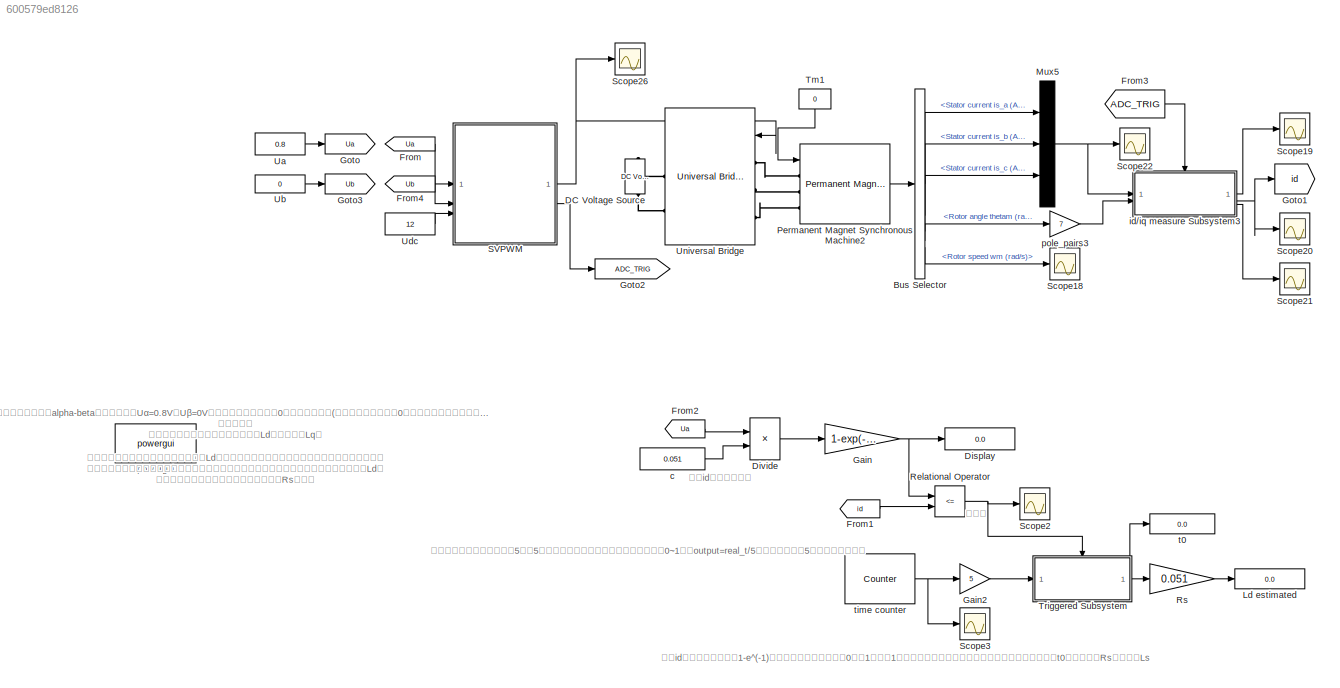
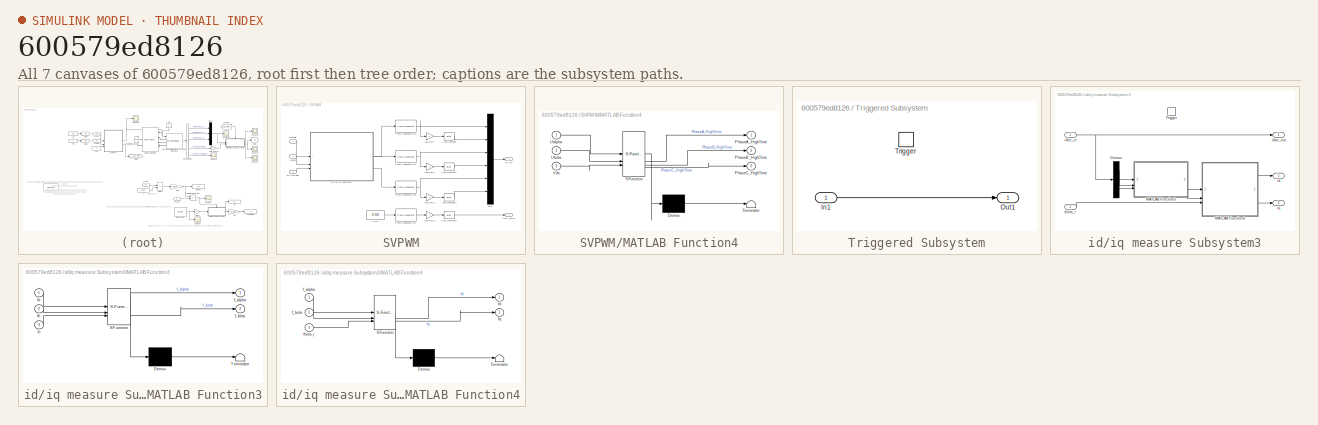
[diagram: thumbnail index - all 7 canvases of the model, root first then tree order]
MODEL slx_600579ed8126
KIND model
CONFIG AbsTol = auto
CONFIG EnableMultiTasking = off
CONFIG FixedStep = 1E-6
CONFIG MaxStep = auto
CONFIG MinStep = auto
CONFIG RelTol = 1e-3
CONFIG SampleTimeConstraint = Unconstrained
CONFIG SolverName = FixedStepAuto
CONFIG StartTime = 0.0
CONFIG StopTime = 0.5
WORKSPACE source: mxarray member
WORKSPACE PWM_Frequency: Simulink.Parameter (value not decoded)
WORKSPACE TimerPeriod = 0.1
BLOCK [Constant]  c
  Value = 0.051
BLOCK [BusSelector] Bus Selector
  OutputSignals = Stator current is_a (A),Stator current is_b (A),Stator current is_c (A),Rotor angle thetam (rad),Rotor speed wm (rad/s)
BLOCK [Reference] DC Voltage Source  REF=spsDCVoltageSourceLib/DC Voltage Source
  LibrarySourceBlock = sps_lib/Sources/DC Voltage Source
  SourceBlock = spsDCVoltageSourceLib/DC Voltage Source
  SourceType = DC Voltage Source
BLOCK [Display] Display
  Decimation = 1
BLOCK [Product] Divide
  Inputs = */
BLOCK [From] From
  GotoTag = Ua
BLOCK [From] From1
  GotoTag = id
BLOCK [From] From2
  GotoTag = Ua
BLOCK [From] From3
  GotoTag = ADC_TRIG
BLOCK [From] From4
  GotoTag = Ub
BLOCK [Gain] Gain
  Gain = 1-exp(-1)
BLOCK [Gain] Gain2
  Gain = 5
BLOCK [Goto] Goto
  GotoTag = Ua
BLOCK [Goto] Goto1
  GotoTag = id
BLOCK [Goto] Goto2
  GotoTag = ADC_TRIG
BLOCK [Goto] Goto3
  GotoTag = Ub
BLOCK [Display] Ld estimated
  Decimation = 1
BLOCK [Mux] Mux5
  DisplayOption = bar
  Inputs = 3
BLOCK [Reference] Permanent Magnet Synchronous Machine2  REF=spsPermanentMagnetSynchronousMachineLib/Permanent Magnet
Synchronous Machine
  LibrarySourceBlock = sps_lib/Electrical Machines/Permanent Magnet\nSynchronous Machine
  SourceBlock = spsPermanentMagnetSynchronousMachineLib/Permanent Magnet\nSynchronous Machine
  SourceType = Permanent Magnet Synchronous Machine
BLOCK [RelationalOperator] Relational Operator
  InputSameDT = off
  Operator = <=
  OutDataTypeStr = boolean
  RndMeth = Simplest
BLOCK [Gain] Rs
  Gain = 0.051
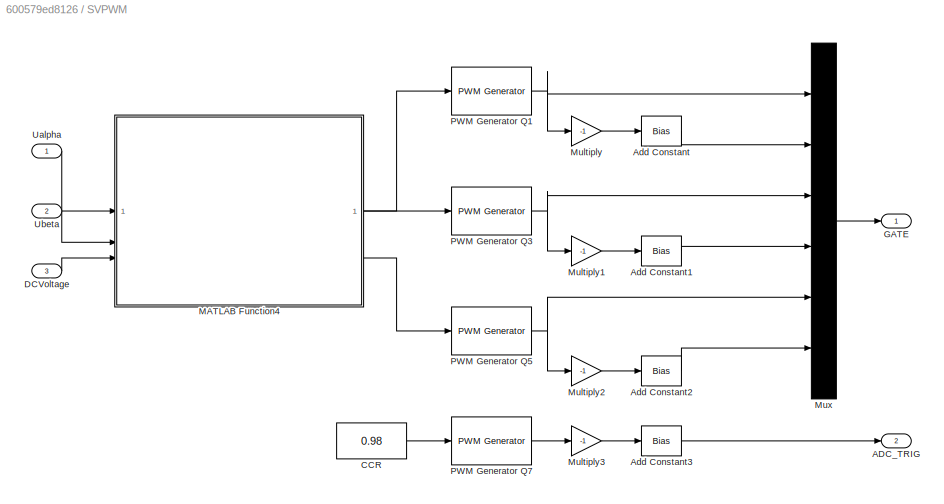
BLOCK [SubSystem] SVPWM
BLOCK [Outport] SVPWM/ADC_TRIG
  Port = 2
BLOCK [Bias] SVPWM/Add Constant
  Bias = 1
  SaturateOnIntegerOverflow = off
BLOCK [Bias] SVPWM/Add Constant1
  Bias = 1
  SaturateOnIntegerOverflow = off
BLOCK [Bias] SVPWM/Add Constant2
  Bias = 1
  SaturateOnIntegerOverflow = off
BLOCK [Bias] SVPWM/Add Constant3
  Bias = 1
  SaturateOnIntegerOverflow = off
BLOCK [Constant] SVPWM/CCR
  Value = 0.98
BLOCK [Inport] SVPWM/DCVoltage
  IconDisplay = Signal name
  Port = 3
BLOCK [Outport] SVPWM/GATE
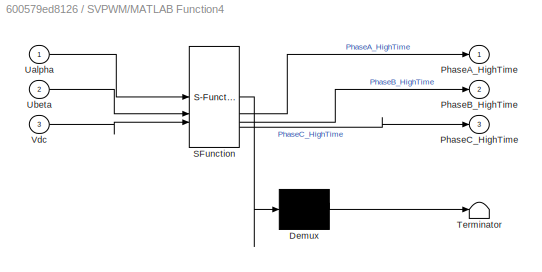
BLOCK [SubSystem] SVPWM/MATLAB Function4
  ErrorFcn = Stateflow.Translate.translate
  PermitHierarchicalResolution = ExplicitOnly
  SFBlockType = MATLAB Function
  TreatAsAtomicUnit = on
BLOCK [Demux] SVPWM/MATLAB Function4/ Demux 
  Outputs = 1
BLOCK [S-Function] SVPWM/MATLAB Function4/ SFunction 
  EnableBusSupport = on
  FunctionName = sf_sfun
  PortCounts = [3 4]
  SFcnIsStateOwnerBlock = off
  SFunctionDeploymentMode = off
  Tag = Stateflow S-Function 17
BLOCK [Terminator] SVPWM/MATLAB Function4/ Terminator 
BLOCK [Outport] SVPWM/MATLAB Function4/PhaseA_HighTime
BLOCK [Outport] SVPWM/MATLAB Function4/PhaseB_HighTime
  Port = 2
BLOCK [Outport] SVPWM/MATLAB Function4/PhaseC_HighTime
  Port = 3
BLOCK [Inport] SVPWM/MATLAB Function4/Ualpha
BLOCK [Inport] SVPWM/MATLAB Function4/Ubeta
  Port = 2
BLOCK [Inport] SVPWM/MATLAB Function4/Vdc
  Port = 3
BLOCK [Gain] SVPWM/Multiply
  Gain = -1
BLOCK [Gain] SVPWM/Multiply1
  Gain = -1
BLOCK [Gain] SVPWM/Multiply2
  Gain = -1
BLOCK [Gain] SVPWM/Multiply3
  Gain = -1
BLOCK [Mux] SVPWM/Mux
  DisplayOption = bar
  Inputs = 6
BLOCK [Reference] SVPWM/PWM Generator Q1  REF=eePwmGenerator/PWM Generator
  LibrarySourceBlock = ee_sl_lib/Pulse Width\nModulation/PWM Generator
  SourceBlock = eePwmGenerator/PWM Generator
  SourceType = PWM Generator
BLOCK [Reference] SVPWM/PWM Generator Q3  REF=eePwmGenerator/PWM Generator
  LibrarySourceBlock = ee_sl_lib/Pulse Width\nModulation/PWM Generator
  SourceBlock = eePwmGenerator/PWM Generator
  SourceType = PWM Generator
BLOCK [Reference] SVPWM/PWM Generator Q5  REF=eePwmGenerator/PWM Generator
  LibrarySourceBlock = ee_sl_lib/Pulse Width\nModulation/PWM Generator
  SourceBlock = eePwmGenerator/PWM Generator
  SourceType = PWM Generator
BLOCK [Reference] SVPWM/PWM Generator Q7  REF=eePwmGenerator/PWM Generator
  LibrarySourceBlock = ee_sl_lib/Pulse Width\nModulation/PWM Generator
  SourceBlock = eePwmGenerator/PWM Generator
  SourceType = PWM Generator
BLOCK [Inport] SVPWM/Ualpha
BLOCK [Inport] SVPWM/Ubeta
  Port = 2
BLOCK [Scope] Scope18
  Floating = off
  NumInputPorts = 1
  ScopeSpecificationString = Simulink.scopes.TimeScopeBlockCfg('CurrentConfiguration', extmgr.ConfigurationSet(extmgr.Configuration('Core','General UI',true),extmgr.Configuration('Core','Source UI',true),extmgr.Configuration('Sources','WiredSimulink',true,'DataLoggingVariableName','ScopeData5'),extmgr.Configuration('Visuals','Time Domain',true,'SerializedDisplays',{struct('MinYLimReal','-24.29362','MaxYLimReal','24.68517','YL...<+1590ch>
BLOCK [Scope] Scope19
  Floating = off
  NumInputPorts = 1
  ScopeSpecificationString = Simulink.scopes.TimeScopeBlockCfg('CurrentConfiguration', extmgr.ConfigurationSet(extmgr.Configuration('Core','General UI',true),extmgr.Configuration('Core','Source UI',true),extmgr.Configuration('Sources','WiredSimulink',true,'DataLoggingVariableName','ScopeData6'),extmgr.Configuration('Visuals','Time Domain',true,'SerializedDisplays',{struct('MinYLimReal','-10.66061','MaxYLimReal','18.41378','YL...<+1627ch>
BLOCK [Scope] Scope2
  Floating = off
  NumInputPorts = 1
  ScopeSpecificationString = Simulink.scopes.TimeScopeBlockCfg('CurrentConfiguration', extmgr.ConfigurationSet(extmgr.Configuration('Core','General UI',true),extmgr.Configuration('Core','Source UI',true),extmgr.Configuration('Sources','WiredSimulink',true,'DataLoggingVariableName','ScopeData1'),extmgr.Configuration('Visuals','Time Domain',true,'SerializedDisplays',{struct('MinYLimReal','-0.125','MaxYLimReal','1.125','YLabelRe...<+1567ch>
BLOCK [Scope] Scope20
  Floating = off
  NumInputPorts = 1
  ScopeSpecificationString = Simulink.scopes.TimeScopeBlockCfg('CurrentConfiguration', extmgr.ConfigurationSet(extmgr.Configuration('Core','General UI',true),extmgr.Configuration('Core','Source UI',true),extmgr.Configuration('Sources','WiredSimulink',true,'DataLoggingVariableName','ScopeData7'),extmgr.Configuration('Visuals','Time Domain',true,'SerializedDisplays',{struct('MinYLimReal','-1.37271','MaxYLimReal','12.35443','YLa...<+1562ch>
BLOCK [Scope] Scope21
  Floating = off
  NumInputPorts = 1
  ScopeSpecificationString = Simulink.scopes.TimeScopeBlockCfg('CurrentConfiguration', extmgr.ConfigurationSet(extmgr.Configuration('Core','General UI',true),extmgr.Configuration('Core','Source UI',true),extmgr.Configuration('Sources','WiredSimulink',true,'DataLoggingVariableName','ScopeData8'),extmgr.Configuration('Visuals','Time Domain',true,'SerializedDisplays',{struct('MinYLimReal','-1.16492','MaxYLimReal','1.06283','YLab...<+1558ch>
BLOCK [Scope] Scope22
  Floating = off
  NumInputPorts = 1
  ScopeSpecificationString = Simulink.scopes.TimeScopeBlockCfg('CurrentConfiguration', extmgr.ConfigurationSet(extmgr.Configuration('Core','General UI',true),extmgr.Configuration('Core','Source UI',true),extmgr.Configuration('Sources','WiredSimulink',true,'DataLoggingVariableName','ScopeData9'),extmgr.Configuration('Visuals','Time Domain',true,'SerializedDisplays',{struct('MinYLimReal','-2.69787','MaxYLimReal','4.65995','YLab...<+1678ch>
BLOCK [Scope] Scope26
  Floating = off
  NumInputPorts = 1
  ScopeSpecificationString = Simulink.scopes.TimeScopeBlockCfg('CurrentConfiguration', extmgr.ConfigurationSet(extmgr.Configuration('Core','General UI',true),extmgr.Configuration('Core','Source UI',true),extmgr.Configuration('Sources','WiredSimulink',true,'DataLoggingVariableName','ScopeData13'),extmgr.Configuration('Visuals','Time Domain',true,'SerializedDisplays',{struct('MinYLimReal','-0.02303','MaxYLimReal','1.01582','YLa...<+1897ch>
BLOCK [Scope] Scope3
  Floating = off
  NumInputPorts = 1
  ScopeSpecificationString = Simulink.scopes.TimeScopeBlockCfg('CurrentConfiguration', extmgr.ConfigurationSet(extmgr.Configuration('Core','General UI',true),extmgr.Configuration('Core','Source UI',true),extmgr.Configuration('Sources','WiredSimulink',true,'DataLoggingVariableName','ScopeData2'),extmgr.Configuration('Visuals','Time Domain',true,'SerializedDisplays',{struct('MinYLimReal','-0.125','MaxYLimReal','1.125','YLabelRe...<+1555ch>
BLOCK [Constant] Tm1
  NameLocation = top
  Value = 0
BLOCK [SubSystem] Triggered Subsystem
  TreatAsAtomicUnit = on
BLOCK [Inport] Triggered Subsystem/In1
BLOCK [Outport] Triggered Subsystem/Out1
BLOCK [TriggerPort] Triggered Subsystem/Trigger
  StatesWhenEnabling = held
  VariantControl = (inherit)
BLOCK [Constant] Ua
  Value = 0.8
BLOCK [Constant] Ub
  Value = 0
BLOCK [Constant] Udc
  Value = 12
BLOCK [Reference] Universal Bridge  REF=spsUniversalBridgeLib/Universal Bridge
  LibrarySourceBlock = sps_lib/Power Electronics/Universal Bridge
  SourceBlock = spsUniversalBridgeLib/Universal Bridge
  SourceType = Universal Bridge
BLOCK [SubSystem] id//iq measure Subsystem3
  TreatAsAtomicUnit = on
BLOCK [Demux] id//iq measure Subsystem3/Demux
  Outputs = 3
BLOCK [SubSystem] id//iq measure Subsystem3/MATLAB Function3
  ErrorFcn = Stateflow.Translate.translate
  PermitHierarchicalResolution = ExplicitOnly
  SFBlockType = MATLAB Function
  TreatAsAtomicUnit = on
BLOCK [Demux] id//iq measure Subsystem3/MATLAB Function3/ Demux 
  Outputs = 1
BLOCK [S-Function] id//iq measure Subsystem3/MATLAB Function3/ SFunction 
  EnableBusSupport = on
  FunctionName = sf_sfun
  PortCounts = [3 3]
  SFcnIsStateOwnerBlock = off
  SFunctionDeploymentMode = off
  Tag = Stateflow S-Function 20
BLOCK [Terminator] id//iq measure Subsystem3/MATLAB Function3/ Terminator 
BLOCK [Outport] id//iq measure Subsystem3/MATLAB Function3/f_alpha
BLOCK [Outport] id//iq measure Subsystem3/MATLAB Function3/f_beta
  Port = 2
BLOCK [Inport] id//iq measure Subsystem3/MATLAB Function3/fa
BLOCK [Inport] id//iq measure Subsystem3/MATLAB Function3/fb
  Port = 2
BLOCK [Inport] id//iq measure Subsystem3/MATLAB Function3/fc
  Port = 3
BLOCK [SubSystem] id//iq measure Subsystem3/MATLAB Function4
  ErrorFcn = Stateflow.Translate.translate
  PermitHierarchicalResolution = ExplicitOnly
  SFBlockType = MATLAB Function
  TreatAsAtomicUnit = on
BLOCK [Demux] id//iq measure Subsystem3/MATLAB Function4/ Demux 
  Outputs = 1
BLOCK [S-Function] id//iq measure Subsystem3/MATLAB Function4/ SFunction 
  EnableBusSupport = on
  FunctionName = sf_sfun
  PortCounts = [3 3]
  SFcnIsStateOwnerBlock = off
  SFunctionDeploymentMode = off
  Tag = Stateflow S-Function 21
BLOCK [Terminator] id//iq measure Subsystem3/MATLAB Function4/ Terminator 
BLOCK [Inport] id//iq measure Subsystem3/MATLAB Function4/f_alpha
BLOCK [Inport] id//iq measure Subsystem3/MATLAB Function4/f_beta
  Port = 2
BLOCK [Outport] id//iq measure Subsystem3/MATLAB Function4/fd
BLOCK [Outport] id//iq measure Subsystem3/MATLAB Function4/fq
  Port = 2
BLOCK [Inport] id//iq measure Subsystem3/MATLAB Function4/theta_r
  Port = 3
BLOCK [TriggerPort] id//iq measure Subsystem3/Trigger
  StatesWhenEnabling = held
  VariantControl = (inherit)
BLOCK [Inport] id//iq measure Subsystem3/iabc_in
BLOCK [Outport] id//iq measure Subsystem3/iabc_out
BLOCK [Outport] id//iq measure Subsystem3/id
  Port = 2
BLOCK [Outport] id//iq measure Subsystem3/iq
  Port = 3
BLOCK [Inport] id//iq measure Subsystem3/theta_r
  Port = 2
BLOCK [Gain] pole_pairs3
  Gain = 7
BLOCK [Reference] powergui  REF=sps_lib/powergui
  LibrarySourceBlock = sps_lib/powergui
  Priority = 1
  SourceBlock = sps_lib/powergui
  SourceType = PSB option menu block
BLOCK [Display] t0
  Decimation = 1
BLOCK [Reference] time counter  REF=eeGeneralControl/Counter
  LibrarySourceBlock = ee_sl_lib/General Control/Counter
  SourceBlock = eeGeneralControl/Counter
  SourceType = Counter
ANNOTATION (root): 在电机空载时，在静止alpha-beta坐标系中施加Uα=0.8V，Uβ=0V，此时电机将被强拖至0位置，不会旋转(可在测量前先强拖至0位置，位置稳定后再执行测量)。alpha轴与A相重合，这对应A相接High，B相&C相解GND的直流电路，此时iα=id，我们重点考察iα从0趋向于稳态值的过程，该过程正比于1-exp(-Rs*t/Ls)，所以只需要监控id由小到大的过程，记录其等于稳态值的1-exp(-1)的时刻即可，该时刻t0=Ls/Rs，用Rs*t0即可得到Ls。 注意事项： 第一，此方法实际测得的是直轴电感Ld，无法测量Lq。 第二，若在实际电机中执行此方法测量Ld，直流电流持续时间应尽可能短，以防烧坏电机线圈。 第三，电感越大，进入稳态需要的时间越长，倘若仿真结束了还没有进入稳态，则无法得到Ld。 第四，该方法的前提是你已经知道相电阻Rs的值。
ANNOTATION (root): 上升沿
ANNOTATION (root): 我们将该计数器设置为计时5秒（5秒足够达到稳态了），时间输出归一化为0~1，即output=real_t/5，所以输出要乘5才是真实时间值。
ANNOTATION (root): 监控id何时达到稳态值的1-e^(-1)，达到时比较器输出将从0变为1，产生1个上升沿，上升沿触发子系统，记录下上升沿的时刻t0，该时间乘Rs即可得到Ls
ANNOTATION (root): 计算id电流的稳态值
LINE  c:1 -> Divide:2
LINE Bus Selector:1 -> Mux5:1
LINE Bus Selector:2 -> Mux5:2
LINE Bus Selector:3 -> Mux5:3
LINE Bus Selector:4 -> pole_pairs3:1
LINE Bus Selector:5 -> Scope18:1
LINE Divide:1 -> Gain:1
LINE From1:1 -> Relational Operator:2
LINE From2:1 -> Divide:1
LINE From3:1 -> id//iq measure Subsystem3:trigger
LINE From4:1 -> SVPWM:2
LINE From:1 -> SVPWM:1
LINE Gain2:1 -> Triggered Subsystem:1
NET Gain:1 -> Display:1, Relational Operator:1
NET Mux5:1 -> Scope22:1, id//iq measure Subsystem3:1
LINE Permanent Magnet Synchronous Machine2:1 -> Bus Selector:1
NET Relational Operator:1 -> Scope2:1, Triggered Subsystem:trigger
LINE Rs:1 -> Ld estimated:1
LINE SVPWM/Add Constant1:1 -> SVPWM/Mux:4
LINE SVPWM/Add Constant2:1 -> SVPWM/Mux:6
LINE SVPWM/Add Constant3:1 -> SVPWM/ADC_TRIG:1
LINE SVPWM/Add Constant:1 -> SVPWM/Mux:2
LINE SVPWM/CCR:1 -> SVPWM/PWM Generator Q7:1
LINE SVPWM/DCVoltage:1 -> SVPWM/MATLAB Function4:3
LINE SVPWM/MATLAB Function4:1 -> SVPWM/PWM Generator Q1:1
LINE SVPWM/MATLAB Function4:2 -> SVPWM/PWM Generator Q3:1
LINE SVPWM/MATLAB Function4:3 -> SVPWM/PWM Generator Q5:1
LINE SVPWM/Multiply1:1 -> SVPWM/Add Constant1:1
LINE SVPWM/Multiply2:1 -> SVPWM/Add Constant2:1
LINE SVPWM/Multiply3:1 -> SVPWM/Add Constant3:1
LINE SVPWM/Multiply:1 -> SVPWM/Add Constant:1
LINE SVPWM/Mux:1 -> SVPWM/GATE:1
NET SVPWM/PWM Generator Q1:1 -> SVPWM/Multiply:1, SVPWM/Mux:1
NET SVPWM/PWM Generator Q3:1 -> SVPWM/Multiply1:1, SVPWM/Mux:3
NET SVPWM/PWM Generator Q5:1 -> SVPWM/Multiply2:1, SVPWM/Mux:5
LINE SVPWM/PWM Generator Q7:1 -> SVPWM/Multiply3:1
LINE SVPWM/Ualpha:1 -> SVPWM/MATLAB Function4:1
LINE SVPWM/Ubeta:1 -> SVPWM/MATLAB Function4:2
NET SVPWM:1 -> Scope26:1, Universal Bridge:1
LINE SVPWM:2 -> Goto2:1
LINE Tm1:1 -> Permanent Magnet Synchronous Machine2:1
LINE Triggered Subsystem/In1:1 -> Triggered Subsystem/Out1:1
NET Triggered Subsystem:1 -> Rs:1, t0:1
LINE Ua:1 -> Goto:1
LINE Ub:1 -> Goto3:1
LINE Udc:1 -> SVPWM:3
LINE id//iq measure Subsystem3/Demux:1 -> id//iq measure Subsystem3/MATLAB Function3:1
LINE id//iq measure Subsystem3/Demux:2 -> id//iq measure Subsystem3/MATLAB Function3:2
LINE id//iq measure Subsystem3/Demux:3 -> id//iq measure Subsystem3/MATLAB Function3:3
LINE id//iq measure Subsystem3/MATLAB Function3:1 -> id//iq measure Subsystem3/MATLAB Function4:1
LINE id//iq measure Subsystem3/MATLAB Function3:2 -> id//iq measure Subsystem3/MATLAB Function4:2
LINE id//iq measure Subsystem3/MATLAB Function4:1 -> id//iq measure Subsystem3/id:1
LINE id//iq measure Subsystem3/MATLAB Function4:2 -> id//iq measure Subsystem3/iq:1
NET id//iq measure Subsystem3/iabc_in:1 -> id//iq measure Subsystem3/Demux:1, id//iq measure Subsystem3/iabc_out:1
LINE id//iq measure Subsystem3/theta_r:1 -> id//iq measure Subsystem3/MATLAB Function4:3
LINE id//iq measure Subsystem3:1 -> Scope19:1
NET id//iq measure Subsystem3:2 -> Goto1:1, Scope20:1
LINE id//iq measure Subsystem3:3 -> Scope21:1
LINE pole_pairs3:1 -> id//iq measure Subsystem3:2
NET time counter:1 -> Gain2:1, Scope3:1
PLINE DC Voltage Source:LConn1 -- Universal Bridge:RConn2
PLINE DC Voltage Source:RConn1 -- Universal Bridge:RConn1
PLINE Permanent Magnet Synchronous Machine2:LConn1 -- Universal Bridge:LConn1
PLINE Permanent Magnet Synchronous Machine2:LConn2 -- Universal Bridge:LConn2
PLINE Permanent Magnet Synchronous Machine2:LConn3 -- Universal Bridge:LConn3
note: NET lines group one-source signal fan-out (src -> all destinations, sorted); 1:1 wires keep LINE
CHART SVPWM/MATLAB Function4 states=1 transitions=1
  STATE_LABEL 'eML_blk_kernel()'
  STATE_LABEL 'SCRIPT:\nfunction [PhaseA_HighTime,PhaseB_HighTime,PhaseC_HighTime] = SVPWM_calculate(Ualpha,Ubeta,Vdc)\n\n% unit:V %\n\n%step 1,which sector?%\nif Ualpha >= 0\n    %sector=1,2,5,6%\n    if Ubeta >= 0\n        %sector=1,2%\n        if Ubeta > sqrt(3)*Ualpha\n            sector=2;\n        else\n            sector=1;\n        end\n    else\n        %sector=5,6%\n        if -Ubeta > sqrt(3)*Ualpha\n            sector...<+1917ch>'
CHART id//iq measure
Subsystem3/MATLAB Function3 states=1 transitions=1
  STATE_LABEL 'eML_blk_kernel()'
  STATE_LABEL 'SCRIPT:\nfunction [f_alpha,f_beta]= ABC_to_AlphaBeta(fa,fb,fc)\nf_alpha = (2/3)*(fa-0.5*(fb+fc));\nf_beta = (2/3)*(0.5*sqrt(3)*(fb-fc));\n\n'
CHART id//iq measure
Subsystem3/MATLAB Function4 states=1 transitions=1
  STATE_LABEL 'eML_blk_kernel()'
  STATE_LABEL 'SCRIPT:\nfunction [fd,fq]= AlphaBeta_to_dq(f_alpha,f_beta,theta_r)\n\nc = cos(theta_r);\ns = sin(theta_r);\nfd =  c*f_alpha + s*f_beta;\nfq = -s*f_alpha + c*f_beta;\n\n'
CHART  states=0 transitions=0
CHART  states=0 transitions=0
CHART  states=0 transitions=0
